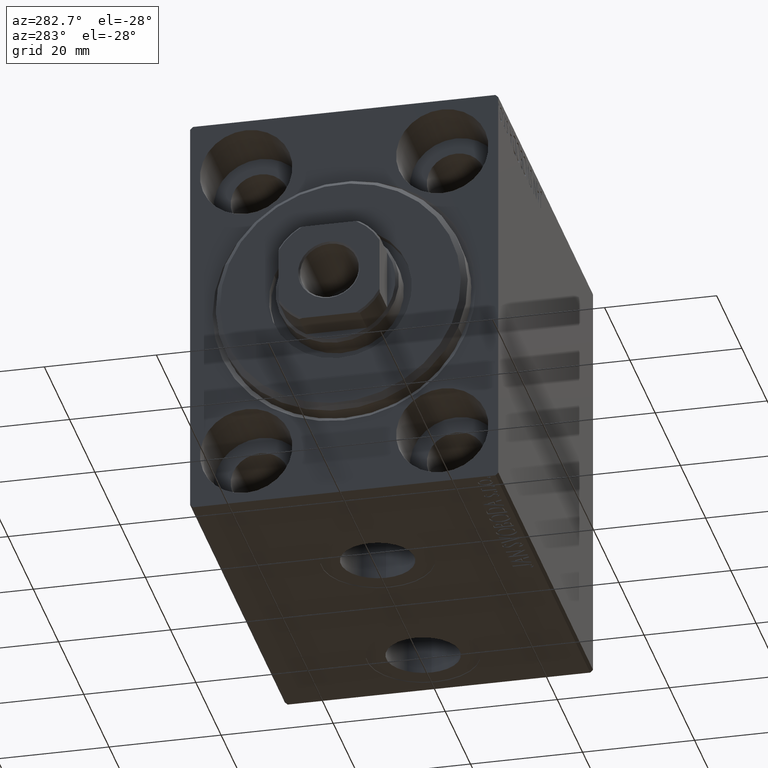
[diagram: clean part render]
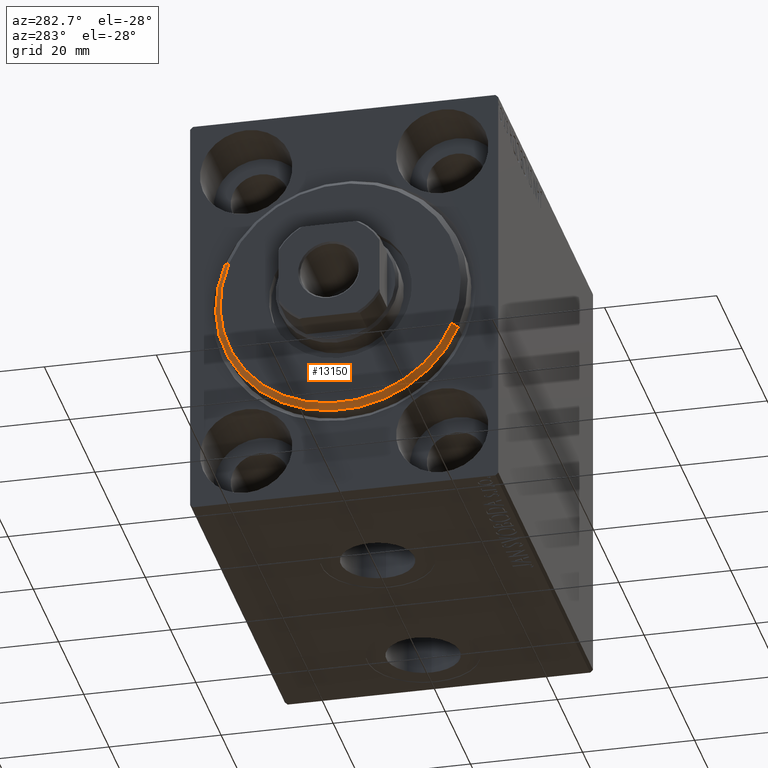
[diagram: same view with one face highlighted and labeled with its STEP entity id]
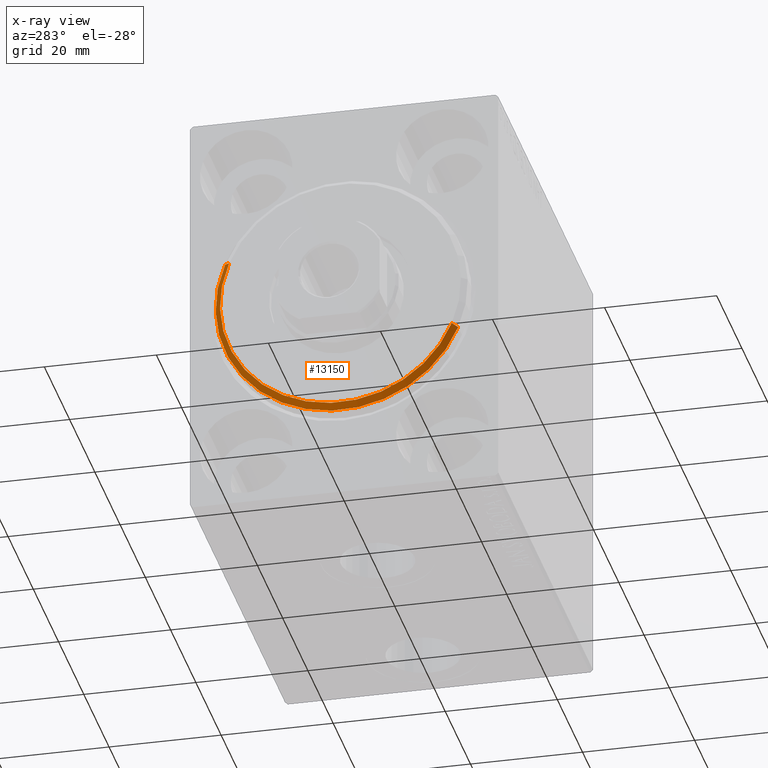
[diagram: x-ray of the same camera — body ghosted, the highlighted face saturated]
A machine part, auxiliary view. The second image highlights one B-rep face of the part: STEP entity #13150.
The next image is the same camera in x-ray: the body ghosted, the highlighted face saturated — about 0% of this face is hidden behind the body in this view.
In plain terms, the highlighted conical surface has half-angle 45 deg.
Its self-contained STEP definition (entity closure, byte-faithful):
#55 = LINE ( 'NONE', #20106, #29782 ) ;
#1290 = DIRECTION ( 'NONE',  ( 1.000000000000000000, -0.000000000000000000, 0.000000000000000000 ) ) ;
#2089 = CARTESIAN_POINT ( 'NONE',  ( 3.000000000000000000, 2.694222958124177598E-15, -21.50000000000000355 ) ) ;
#3492 = CARTESIAN_POINT ( 'NONE',  ( 1.999999999999999112, 0.000000000000000000, 22.50000000000000355 ) ) ;
#3841 = EDGE_CURVE ( 'NONE', #21984, #10823, #40107, .T. ) ;
#5132 = LINE ( 'NONE', #18936, #28416 ) ;
#5253 = ORIENTED_EDGE ( 'NONE', *, *, #33399, .F. ) ;
#6769 = CIRCLE ( 'NONE', #18191, 21.50000000000000355 ) ;
#8699 = ORIENTED_EDGE ( 'NONE', *, *, #36423, .T. ) ;
#10255 = EDGE_CURVE ( 'NONE', #41298, #24155, #6769, .T. ) ;
#10823 = VERTEX_POINT ( 'NONE', #21238 ) ;
#13075 = FACE_OUTER_BOUND ( 'NONE', #32723, .T. ) ;
#13150 = ADVANCED_FACE ( 'NONE', ( #13075 ), #18256, .T. ) ;
#16879 = CARTESIAN_POINT ( 'NONE',  ( 3.000000000000000000, 0.000000000000000000, 0.000000000000000000 ) ) ;
#18191 = AXIS2_PLACEMENT_3D ( 'NONE', #42001, #1290, #18227 ) ;
#18227 = DIRECTION ( 'NONE',  ( 0.000000000000000000, 0.000000000000000000, -1.000000000000000000 ) ) ;
#18256 = CONICAL_SURFACE ( 'NONE', #43082, 21.50000000000000355, 0.7853981633974466137 ) ;
#18377 = DIRECTION ( 'NONE',  ( 0.000000000000000000, 0.000000000000000000, -1.000000000000000000 ) ) ;
#18936 = CARTESIAN_POINT ( 'NONE',  ( 3.000000000000000000, 2.632990618166810024E-15, -21.50000000000000355 ) ) ;
#19526 = AXIS2_PLACEMENT_3D ( 'NONE', #38366, #41934, #18377 ) ;
#20106 = CARTESIAN_POINT ( 'NONE',  ( 3.000000000000000000, 0.000000000000000000, 21.50000000000000355 ) ) ;
#21238 = CARTESIAN_POINT ( 'NONE',  ( 1.999999999999999112, 2.755455298081545172E-15, -22.50000000000000355 ) ) ;
#21895 = ORIENTED_EDGE ( 'NONE', *, *, #10255, .F. ) ;
#21984 = VERTEX_POINT ( 'NONE', #3492 ) ;
#24155 = VERTEX_POINT ( 'NONE', #42100 ) ;
#28416 = VECTOR ( 'NONE', #42495, 1000.000000000000000 ) ;
#29762 = DIRECTION ( 'NONE',  ( 0.000000000000000000, 0.000000000000000000, 1.000000000000000000 ) ) ;
#29782 = VECTOR ( 'NONE', #37631, 1000.000000000000000 ) ;
#30428 = DIRECTION ( 'NONE',  ( -1.000000000000000000, 0.000000000000000000, 0.000000000000000000 ) ) ;
#32723 = EDGE_LOOP ( 'NONE', ( #21895, #8699, #36572, #5253 ) ) ;
#33399 = EDGE_CURVE ( 'NONE', #24155, #21984, #55, .T. ) ;
#36423 = EDGE_CURVE ( 'NONE', #41298, #10823, #5132, .T. ) ;
#36572 = ORIENTED_EDGE ( 'NONE', *, *, #3841, .F. ) ;
#37631 = DIRECTION ( 'NONE',  ( -0.7071067811865487940, 0.000000000000000000, 0.7071067811865463515 ) ) ;
#38366 = CARTESIAN_POINT ( 'NONE',  ( 1.999999999999999112, 0.000000000000000000, 0.000000000000000000 ) ) ;
#40107 = CIRCLE ( 'NONE', #19526, 22.50000000000000355 ) ;
#41298 = VERTEX_POINT ( 'NONE', #2089 ) ;
#41934 = DIRECTION ( 'NONE',  ( -1.000000000000000000, 0.000000000000000000, 0.000000000000000000 ) ) ;
#42001 = CARTESIAN_POINT ( 'NONE',  ( 3.000000000000000000, 0.000000000000000000, 0.000000000000000000 ) ) ;
#42100 = CARTESIAN_POINT ( 'NONE',  ( 3.000000000000000000, 0.000000000000000000, 21.50000000000000355 ) ) ;
#42495 = DIRECTION ( 'NONE',  ( -0.7071067811865487940, 8.659560562354919300E-17, -0.7071067811865463515 ) ) ;
#43082 = AXIS2_PLACEMENT_3D ( 'NONE', #16879, #30428, #29762 ) ;